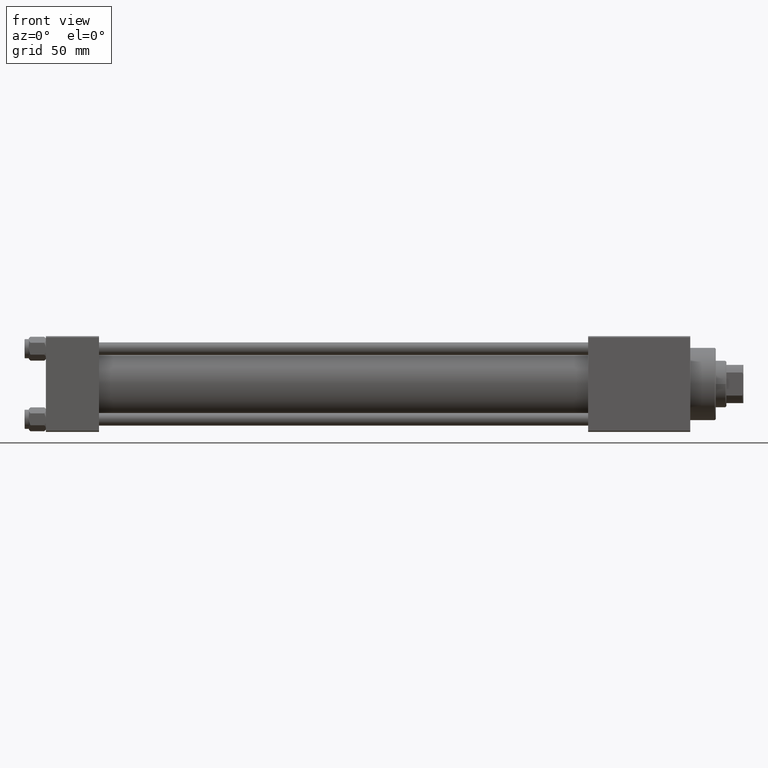
[diagram: clean part render]
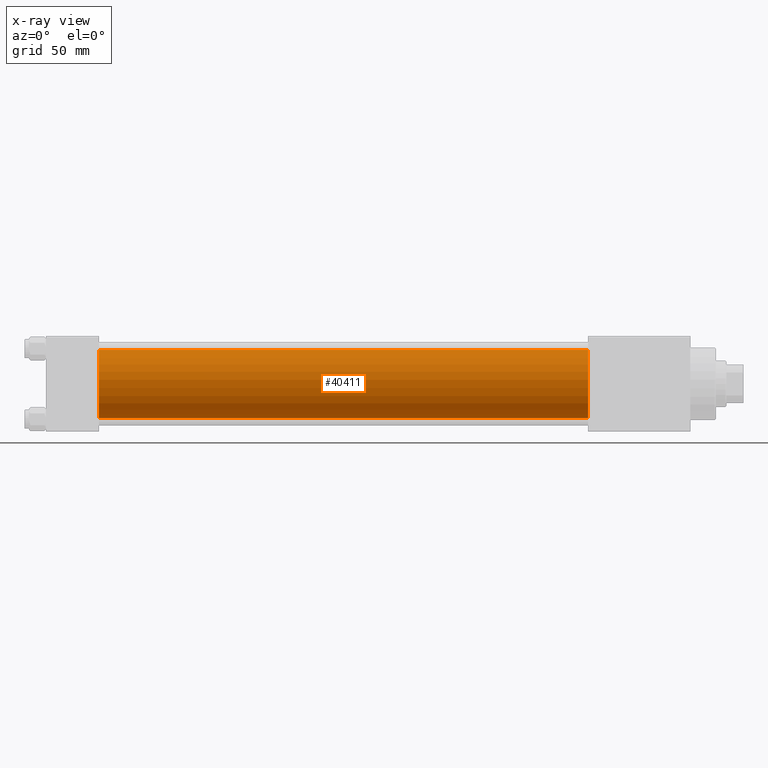
[diagram: x-ray — body ghosted, one internal face saturated and labeled with its STEP entity id]
A machine part, front view, then the same camera in x-ray: the body is ghosted and one INTERNAL B-rep face — a face not visible from any outside direction — is saturated and labeled: STEP entity #40411.
In plain terms, the highlighted cylindrical surface (edge-blend (fillet) strip) has radius 16 mm, axis along (-1, -0, -0).
Its self-contained STEP definition (entity closure, byte-faithful):
#78 = VERTEX_POINT ( 'NONE', #6690 ) ;
#85 = ORIENTED_EDGE ( 'NONE', *, *, #6198, .F. ) ;
#106 = DIRECTION ( 'NONE',  ( -1.000000000000000000, -0.000000000000000000, -0.000000000000000000 ) ) ;
#1101 = FACE_OUTER_BOUND ( 'NONE', #16742, .T. ) ;
#1727 = LINE ( 'NONE', #4789, #30624 ) ;
#1836 = EDGE_CURVE ( 'NONE', #17734, #78, #1727, .T. ) ;
#4789 = CARTESIAN_POINT ( 'NONE',  ( 255.0000000000000000, -2.602085213965210642E-15, 16.00000000000000000 ) ) ;
#6198 = EDGE_CURVE ( 'NONE', #78, #38107, #11189, .T. ) ;
#6690 = CARTESIAN_POINT ( 'NONE',  ( 25.00000000000000000, -2.602085213965210642E-15, 16.00000000000000000 ) ) ;
#7634 = DIRECTION ( 'NONE',  ( 1.000000000000000000, 0.000000000000000000, 0.000000000000000000 ) ) ;
#9112 = DIRECTION ( 'NONE',  ( -1.000000000000000000, -0.000000000000000000, -0.000000000000000000 ) ) ;
#11189 = CIRCLE ( 'NONE', #32365, 16.00000000000000000 ) ;
#12756 = LINE ( 'NONE', #28301, #35704 ) ;
#15639 = DIRECTION ( 'NONE',  ( 0.000000000000000000, 0.000000000000000000, 1.000000000000000000 ) ) ;
#16742 = EDGE_LOOP ( 'NONE', ( #25880, #35814, #85, #32587 ) ) ;
#17734 = VERTEX_POINT ( 'NONE', #43376 ) ;
#19473 = CYLINDRICAL_SURFACE ( 'NONE', #36131, 16.00000000000000000 ) ;
#22401 = EDGE_CURVE ( 'NONE', #47926, #38107, #12756, .T. ) ;
#23975 = AXIS2_PLACEMENT_3D ( 'NONE', #33447, #45133, #25798 ) ;
#25798 = DIRECTION ( 'NONE',  ( 0.000000000000000000, 0.000000000000000000, -1.000000000000000000 ) ) ;
#25880 = ORIENTED_EDGE ( 'NONE', *, *, #42322, .T. ) ;
#26267 = DIRECTION ( 'NONE',  ( 0.000000000000000000, 0.000000000000000000, -1.000000000000000000 ) ) ;
#27364 = CARTESIAN_POINT ( 'NONE',  ( 255.0000000000000000, -2.602085213965210642E-15, 0.000000000000000000 ) ) ;
#28301 = CARTESIAN_POINT ( 'NONE',  ( 255.0000000000000000, -6.426503353294456087E-16, -16.00000000000000000 ) ) ;
#30624 = VECTOR ( 'NONE', #9112, 1000.000000000000000 ) ;
#30835 = CARTESIAN_POINT ( 'NONE',  ( 25.00000000000000000, -2.602085213965210642E-15, 0.000000000000000000 ) ) ;
#32365 = AXIS2_PLACEMENT_3D ( 'NONE', #30835, #7634, #26267 ) ;
#32587 = ORIENTED_EDGE ( 'NONE', *, *, #1836, .F. ) ;
#33447 = CARTESIAN_POINT ( 'NONE',  ( 255.0000000000000000, -2.602085213965210642E-15, 0.000000000000000000 ) ) ;
#35704 = VECTOR ( 'NONE', #43825, 1000.000000000000000 ) ;
#35814 = ORIENTED_EDGE ( 'NONE', *, *, #22401, .T. ) ;
#36131 = AXIS2_PLACEMENT_3D ( 'NONE', #27364, #106, #15639 ) ;
#38107 = VERTEX_POINT ( 'NONE', #47048 ) ;
#40411 = ADVANCED_FACE ( 'NONE', ( #1101 ), #19473, .F. ) ;
#42322 = EDGE_CURVE ( 'NONE', #17734, #47926, #49188, .T. ) ;
#43376 = CARTESIAN_POINT ( 'NONE',  ( 255.0000000000000000, -2.602085213965210642E-15, 16.00000000000000000 ) ) ;
#43825 = DIRECTION ( 'NONE',  ( -1.000000000000000000, -0.000000000000000000, -0.000000000000000000 ) ) ;
#45133 = DIRECTION ( 'NONE',  ( 1.000000000000000000, 0.000000000000000000, 0.000000000000000000 ) ) ;
#47048 = CARTESIAN_POINT ( 'NONE',  ( 25.00000000000000000, -6.426503353294456087E-16, -16.00000000000000000 ) ) ;
#47926 = VERTEX_POINT ( 'NONE', #48275 ) ;
#48275 = CARTESIAN_POINT ( 'NONE',  ( 255.0000000000000000, -6.426503353294456087E-16, -16.00000000000000000 ) ) ;
#49188 = CIRCLE ( 'NONE', #23975, 16.00000000000000000 ) ;